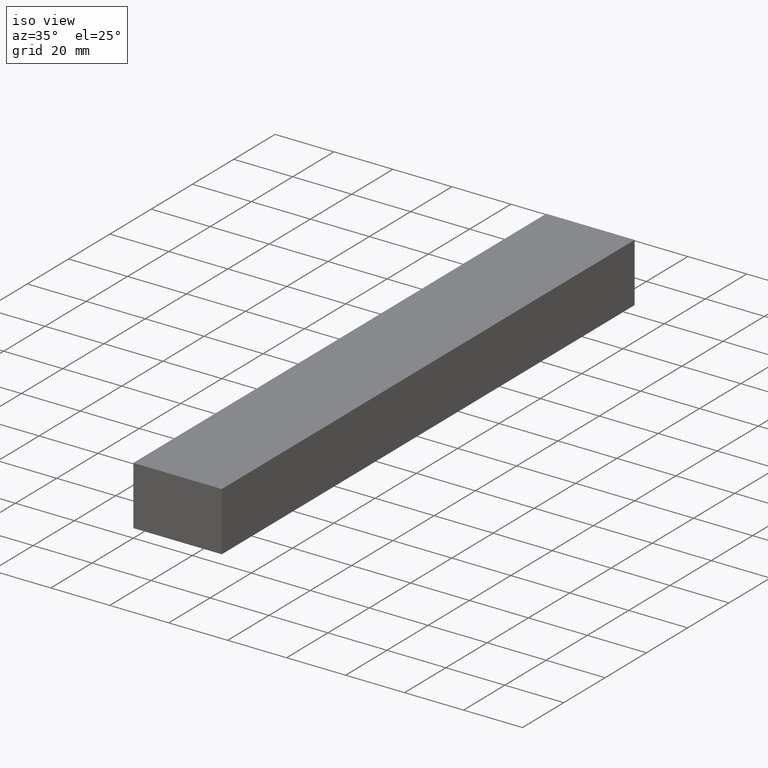
[diagram: clean part render]
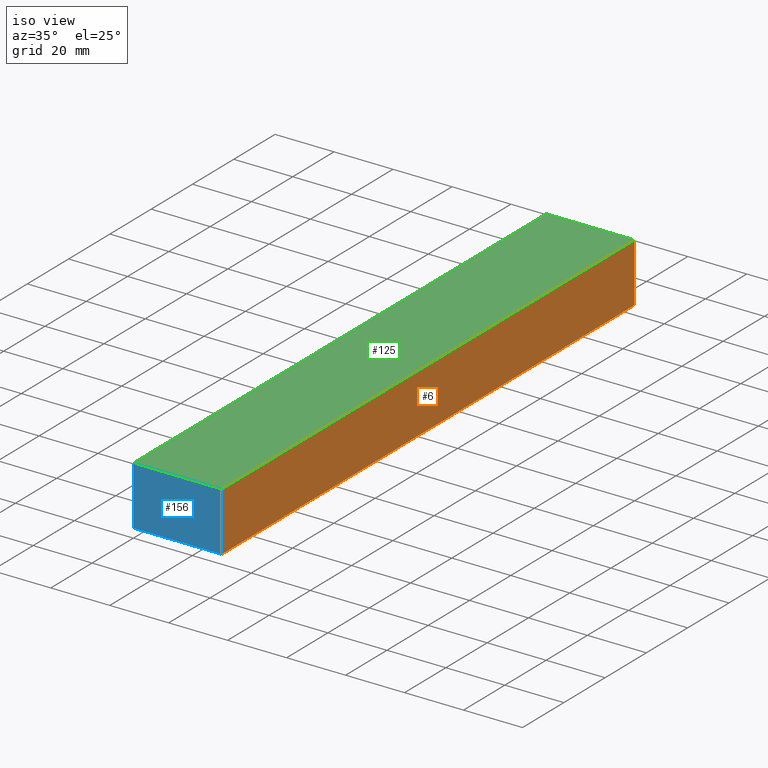
[diagram: same view with three faces highlighted in distinct colors, each labeled with its STEP entity id]
A machine part, iso view with three faces highlighted in distinct colors.
Their STEP definitions:

[orange] entity #6 — the highlighted planar face has unit normal (1, 0, 0).
#6 = ADVANCED_FACE ( 'NONE', ( #190 ), #117, .T. ) ;
#14 = VECTOR ( 'NONE', #145, 1000.000000000000000 ) ;
#16 = VERTEX_POINT ( 'NONE', #53 ) ;
#24 = CARTESIAN_POINT ( 'NONE',  ( 30.00000000000000000, 200.0000000000000000, -10.00000000000000000 ) ) ;
#37 = DIRECTION ( 'NONE',  ( 0.0000000000000000000, 0.0000000000000000000, 1.000000000000000000 ) ) ;
#45 = DIRECTION ( 'NONE',  ( 1.000000000000000000, 0.0000000000000000000, 0.0000000000000000000 ) ) ;
#53 = CARTESIAN_POINT ( 'NONE',  ( 30.00000000000000000, 0.0000000000000000000, 10.00000000000000000 ) ) ;
#65 = EDGE_CURVE ( 'NONE', #16, #71, #89, .T. ) ;
#66 = LINE ( 'NONE', #116, #14 ) ;
#71 = VERTEX_POINT ( 'NONE', #163 ) ;
#89 = LINE ( 'NONE', #228, #134 ) ;
#98 = LINE ( 'NONE', #128, #235 ) ;
#99 = ORIENTED_EDGE ( 'NONE', *, *, #164, .T. ) ;
#110 = EDGE_CURVE ( 'NONE', #209, #158, #66, .T. ) ;
#113 = CARTESIAN_POINT ( 'NONE',  ( 30.00000000000000000, 0.0000000000000000000, -10.00000000000000000 ) ) ;
#116 = CARTESIAN_POINT ( 'NONE',  ( 30.00000000000000000, 0.0000000000000000000, -10.00000000000000000 ) ) ;
#117 = PLANE ( 'NONE',  #177 ) ;
#119 = ORIENTED_EDGE ( 'NONE', *, *, #110, .T. ) ;
#121 = EDGE_CURVE ( 'NONE', #209, #16, #200, .T. ) ;
#128 = CARTESIAN_POINT ( 'NONE',  ( 30.00000000000000000, 200.0000000000000000, -10.00000000000000000 ) ) ;
#134 = VECTOR ( 'NONE', #218, 1000.000000000000000 ) ;
#142 = ORIENTED_EDGE ( 'NONE', *, *, #121, .F. ) ;
#145 = DIRECTION ( 'NONE',  ( 0.0000000000000000000, 1.000000000000000000, 0.0000000000000000000 ) ) ;
#147 = EDGE_LOOP ( 'NONE', ( #222, #142, #119, #99 ) ) ;
#158 = VERTEX_POINT ( 'NONE', #24 ) ;
#163 = CARTESIAN_POINT ( 'NONE',  ( 30.00000000000000000, 200.0000000000000000, 10.00000000000000000 ) ) ;
#164 = EDGE_CURVE ( 'NONE', #158, #71, #98, .T. ) ;
#177 = AXIS2_PLACEMENT_3D ( 'NONE', #208, #45, #223 ) ;
#190 = FACE_OUTER_BOUND ( 'NONE', #147, .T. ) ;
#200 = LINE ( 'NONE', #113, #217 ) ;
#208 = CARTESIAN_POINT ( 'NONE',  ( 30.00000000000000000, 0.0000000000000000000, -10.00000000000000000 ) ) ;
#209 = VERTEX_POINT ( 'NONE', #214 ) ;
#214 = CARTESIAN_POINT ( 'NONE',  ( 30.00000000000000000, 0.0000000000000000000, -10.00000000000000000 ) ) ;
#217 = VECTOR ( 'NONE', #37, 1000.000000000000000 ) ;
#218 = DIRECTION ( 'NONE',  ( 0.0000000000000000000, 1.000000000000000000, 0.0000000000000000000 ) ) ;
#219 = DIRECTION ( 'NONE',  ( 0.0000000000000000000, 0.0000000000000000000, 1.000000000000000000 ) ) ;
#222 = ORIENTED_EDGE ( 'NONE', *, *, #65, .F. ) ;
#223 = DIRECTION ( 'NONE',  ( 0.0000000000000000000, 0.0000000000000000000, -1.000000000000000000 ) ) ;
#228 = CARTESIAN_POINT ( 'NONE',  ( 30.00000000000000000, 0.0000000000000000000, 10.00000000000000000 ) ) ;
#235 = VECTOR ( 'NONE', #219, 1000.000000000000000 ) ;

[blue] entity #156 — the highlighted planar face has unit normal (0, -1, 0).
#2 = EDGE_LOOP ( 'NONE', ( #26, #179, #107, #213 ) ) ;
#16 = VERTEX_POINT ( 'NONE', #53 ) ;
#26 = ORIENTED_EDGE ( 'NONE', *, *, #97, .F. ) ;
#31 = CARTESIAN_POINT ( 'NONE',  ( 0.0000000000000000000, 0.0000000000000000000, -10.00000000000000000 ) ) ;
#37 = DIRECTION ( 'NONE',  ( 0.0000000000000000000, 0.0000000000000000000, 1.000000000000000000 ) ) ;
#53 = CARTESIAN_POINT ( 'NONE',  ( 30.00000000000000000, 0.0000000000000000000, 10.00000000000000000 ) ) ;
#55 = DIRECTION ( 'NONE',  ( 0.0000000000000000000, -0.0000000000000000000, -1.000000000000000000 ) ) ;
#57 = VECTOR ( 'NONE', #93, 1000.000000000000000 ) ;
#76 = DIRECTION ( 'NONE',  ( 1.000000000000000000, 0.0000000000000000000, 0.0000000000000000000 ) ) ;
#84 = EDGE_CURVE ( 'NONE', #195, #209, #183, .T. ) ;
#91 = FACE_OUTER_BOUND ( 'NONE', #2, .T. ) ;
#93 = DIRECTION ( 'NONE',  ( 0.0000000000000000000, 0.0000000000000000000, 1.000000000000000000 ) ) ;
#96 = CARTESIAN_POINT ( 'NONE',  ( 0.0000000000000000000, 0.0000000000000000000, -10.00000000000000000 ) ) ;
#97 = EDGE_CURVE ( 'NONE', #112, #16, #180, .T. ) ;
#107 = ORIENTED_EDGE ( 'NONE', *, *, #84, .T. ) ;
#112 = VERTEX_POINT ( 'NONE', #206 ) ;
#113 = CARTESIAN_POINT ( 'NONE',  ( 30.00000000000000000, 0.0000000000000000000, -10.00000000000000000 ) ) ;
#115 = AXIS2_PLACEMENT_3D ( 'NONE', #191, #203, #55 ) ;
#118 = PLANE ( 'NONE',  #115 ) ;
#121 = EDGE_CURVE ( 'NONE', #209, #16, #200, .T. ) ;
#124 = VECTOR ( 'NONE', #76, 1000.000000000000000 ) ;
#130 = CARTESIAN_POINT ( 'NONE',  ( 0.0000000000000000000, 0.0000000000000000000, 10.00000000000000000 ) ) ;
#131 = EDGE_CURVE ( 'NONE', #195, #112, #146, .T. ) ;
#146 = LINE ( 'NONE', #182, #57 ) ;
#156 = ADVANCED_FACE ( 'NONE', ( #91 ), #118, .T. ) ;
#169 = DIRECTION ( 'NONE',  ( 1.000000000000000000, 0.0000000000000000000, 0.0000000000000000000 ) ) ;
#179 = ORIENTED_EDGE ( 'NONE', *, *, #131, .F. ) ;
#180 = LINE ( 'NONE', #130, #124 ) ;
#182 = CARTESIAN_POINT ( 'NONE',  ( 0.0000000000000000000, 0.0000000000000000000, -10.00000000000000000 ) ) ;
#183 = LINE ( 'NONE', #96, #186 ) ;
#186 = VECTOR ( 'NONE', #169, 1000.000000000000000 ) ;
#191 = CARTESIAN_POINT ( 'NONE',  ( 0.0000000000000000000, 0.0000000000000000000, -10.00000000000000000 ) ) ;
#195 = VERTEX_POINT ( 'NONE', #31 ) ;
#200 = LINE ( 'NONE', #113, #217 ) ;
#203 = DIRECTION ( 'NONE',  ( 0.0000000000000000000, -1.000000000000000000, 0.0000000000000000000 ) ) ;
#206 = CARTESIAN_POINT ( 'NONE',  ( 0.0000000000000000000, 0.0000000000000000000, 10.00000000000000000 ) ) ;
#209 = VERTEX_POINT ( 'NONE', #214 ) ;
#213 = ORIENTED_EDGE ( 'NONE', *, *, #121, .T. ) ;
#214 = CARTESIAN_POINT ( 'NONE',  ( 30.00000000000000000, 0.0000000000000000000, -10.00000000000000000 ) ) ;
#217 = VECTOR ( 'NONE', #37, 1000.000000000000000 ) ;

[green] entity #125 — the highlighted planar face has unit normal (0, 0, 1).
#16 = VERTEX_POINT ( 'NONE', #53 ) ;
#18 = DIRECTION ( 'NONE',  ( 1.000000000000000000, 0.0000000000000000000, 0.0000000000000000000 ) ) ;
#23 = ORIENTED_EDGE ( 'NONE', *, *, #65, .T. ) ;
#33 = PLANE ( 'NONE',  #136 ) ;
#53 = CARTESIAN_POINT ( 'NONE',  ( 30.00000000000000000, 0.0000000000000000000, 10.00000000000000000 ) ) ;
#59 = CARTESIAN_POINT ( 'NONE',  ( 0.0000000000000000000, 200.0000000000000000, 10.00000000000000000 ) ) ;
#60 = DIRECTION ( 'NONE',  ( 0.0000000000000000000, -1.000000000000000000, 0.0000000000000000000 ) ) ;
#63 = CARTESIAN_POINT ( 'NONE',  ( 0.0000000000000000000, 0.0000000000000000000, 10.00000000000000000 ) ) ;
#65 = EDGE_CURVE ( 'NONE', #16, #71, #89, .T. ) ;
#71 = VERTEX_POINT ( 'NONE', #163 ) ;
#74 = EDGE_CURVE ( 'NONE', #71, #100, #129, .T. ) ;
#76 = DIRECTION ( 'NONE',  ( 1.000000000000000000, 0.0000000000000000000, 0.0000000000000000000 ) ) ;
#83 = VECTOR ( 'NONE', #175, 1000.000000000000000 ) ;
#89 = LINE ( 'NONE', #228, #134 ) ;
#94 = CARTESIAN_POINT ( 'NONE',  ( 30.00000000000000000, 200.0000000000000000, 10.00000000000000000 ) ) ;
#95 = ORIENTED_EDGE ( 'NONE', *, *, #114, .T. ) ;
#97 = EDGE_CURVE ( 'NONE', #112, #16, #180, .T. ) ;
#100 = VERTEX_POINT ( 'NONE', #59 ) ;
#105 = VECTOR ( 'NONE', #60, 1000.000000000000000 ) ;
#112 = VERTEX_POINT ( 'NONE', #206 ) ;
#114 = EDGE_CURVE ( 'NONE', #100, #112, #153, .T. ) ;
#124 = VECTOR ( 'NONE', #76, 1000.000000000000000 ) ;
#125 = ADVANCED_FACE ( 'NONE', ( #198 ), #33, .T. ) ;
#129 = LINE ( 'NONE', #94, #83 ) ;
#130 = CARTESIAN_POINT ( 'NONE',  ( 0.0000000000000000000, 0.0000000000000000000, 10.00000000000000000 ) ) ;
#132 = EDGE_LOOP ( 'NONE', ( #95, #141, #23, #161 ) ) ;
#134 = VECTOR ( 'NONE', #218, 1000.000000000000000 ) ;
#136 = AXIS2_PLACEMENT_3D ( 'NONE', #63, #151, #18 ) ;
#141 = ORIENTED_EDGE ( 'NONE', *, *, #97, .T. ) ;
#151 = DIRECTION ( 'NONE',  ( -0.0000000000000000000, 0.0000000000000000000, 1.000000000000000000 ) ) ;
#153 = LINE ( 'NONE', #168, #105 ) ;
#161 = ORIENTED_EDGE ( 'NONE', *, *, #74, .T. ) ;
#163 = CARTESIAN_POINT ( 'NONE',  ( 30.00000000000000000, 200.0000000000000000, 10.00000000000000000 ) ) ;
#168 = CARTESIAN_POINT ( 'NONE',  ( 0.0000000000000000000, 200.0000000000000000, 10.00000000000000000 ) ) ;
#175 = DIRECTION ( 'NONE',  ( -1.000000000000000000, 0.0000000000000000000, 0.0000000000000000000 ) ) ;
#180 = LINE ( 'NONE', #130, #124 ) ;
#198 = FACE_OUTER_BOUND ( 'NONE', #132, .T. ) ;
#206 = CARTESIAN_POINT ( 'NONE',  ( 0.0000000000000000000, 0.0000000000000000000, 10.00000000000000000 ) ) ;
#218 = DIRECTION ( 'NONE',  ( 0.0000000000000000000, 1.000000000000000000, 0.0000000000000000000 ) ) ;
#228 = CARTESIAN_POINT ( 'NONE',  ( 30.00000000000000000, 0.0000000000000000000, 10.00000000000000000 ) ) ;